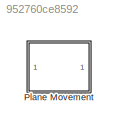
MODEL slx_952760ce8592
KIND library
CONFIG AbsTol = auto
CONFIG EnableMultiTasking = off
CONFIG FixedStep = auto
CONFIG MaxStep = auto
CONFIG MinStep = auto
CONFIG RelTol = 1e-3
CONFIG SampleTimeConstraint = Unconstrained
CONFIG SolverName = VariableStepAuto
CONFIG StartTime = 0.0
CONFIG StopTime = 10.0
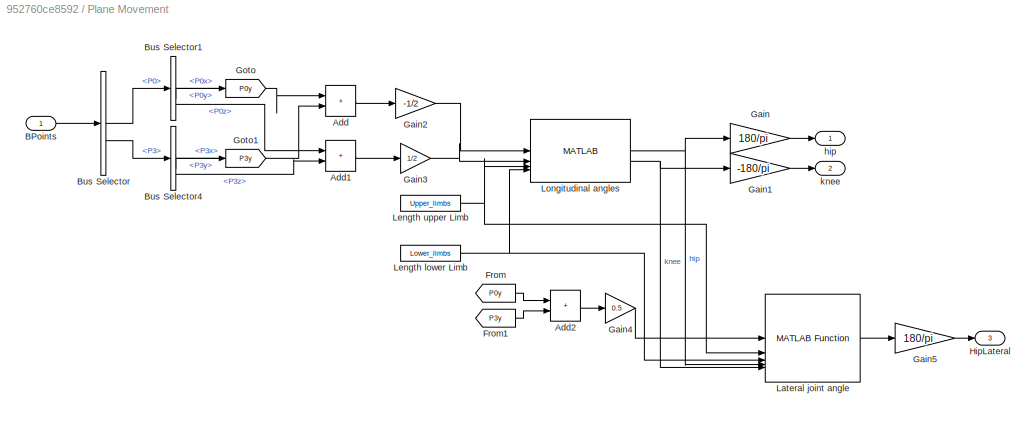
BLOCK [SubSystem] Plane Movement
BLOCK [Sum] Plane Movement/Add
  IconShape = rectangular
BLOCK [Sum] Plane Movement/Add1
  IconShape = rectangular
BLOCK [Sum] Plane Movement/Add2
  IconShape = rectangular
BLOCK [Inport] Plane Movement/BPoints
BLOCK [BusSelector] Plane Movement/Bus Selector
  OutputSignals = P0,P3
BLOCK [BusSelector] Plane Movement/Bus Selector1
  OutputSignals = P0x,P0y,P0z
BLOCK [BusSelector] Plane Movement/Bus Selector4
  OutputSignals = P3x,P3y,P3z
BLOCK [From] Plane Movement/From
  GotoTag = P0y
BLOCK [From] Plane Movement/From1
  GotoTag = P3y
BLOCK [Gain] Plane Movement/Gain
  Gain = 180/pi
BLOCK [Gain] Plane Movement/Gain1
  Gain = -180/pi
BLOCK [Gain] Plane Movement/Gain2
  Gain = -1/2
BLOCK [Gain] Plane Movement/Gain3
  Gain = 1/2
BLOCK [Gain] Plane Movement/Gain4
  Gain = 0.5
BLOCK [Gain] Plane Movement/Gain5
  Gain = 180/pi
BLOCK [Goto] Plane Movement/Goto
  GotoTag = P0y
BLOCK [Goto] Plane Movement/Goto1
  GotoTag = P3y
BLOCK [Outport] Plane Movement/HipLateral
  Port = 3
BLOCK [Reference] Plane Movement/Lateral joint angle  REF=functionAngles/MATLAB Function
  SourceBlock = functionAngles/MATLAB Function
  SourceType = SubSystem
BLOCK [Constant] Plane Movement/Length lower Limb
  Value = Lower_limbs
BLOCK [Constant] Plane Movement/Length upper Limb
  Value = Upper_limbs
BLOCK [Reference] Plane Movement/Longitudinal angles  REF=functionAngles/MATLAB
  SourceBlock = functionAngles/MATLAB
  SourceType = SubSystem
BLOCK [Outport] Plane Movement/hip
BLOCK [Outport] Plane Movement/knee
  Port = 2
LINE Plane Movement/Add1:1 -> Plane Movement/Gain3:1
LINE Plane Movement/Add2:1 -> Plane Movement/Gain4:1
LINE Plane Movement/Add:1 -> Plane Movement/Gain2:1
LINE Plane Movement/BPoints:1 -> Plane Movement/Bus Selector:1
LINE Plane Movement/Bus Selector1:1 -> Plane Movement/Add:1
LINE Plane Movement/Bus Selector1:2 -> Plane Movement/Goto:1
LINE Plane Movement/Bus Selector1:3 -> Plane Movement/Add1:1
LINE Plane Movement/Bus Selector4:1 -> Plane Movement/Add:2
LINE Plane Movement/Bus Selector4:2 -> Plane Movement/Goto1:1
LINE Plane Movement/Bus Selector4:3 -> Plane Movement/Add1:2
LINE Plane Movement/Bus Selector:1 -> Plane Movement/Bus Selector1:1
LINE Plane Movement/Bus Selector:2 -> Plane Movement/Bus Selector4:1
LINE Plane Movement/From1:1 -> Plane Movement/Add2:2
LINE Plane Movement/From:1 -> Plane Movement/Add2:1
LINE Plane Movement/Gain1:1 -> Plane Movement/knee:1
LINE Plane Movement/Gain2:1 -> Plane Movement/Longitudinal angles:1
LINE Plane Movement/Gain3:1 -> Plane Movement/Longitudinal angles:2
LINE Plane Movement/Gain4:1 -> Plane Movement/Lateral joint angle:1
LINE Plane Movement/Gain5:1 -> Plane Movement/HipLateral:1
LINE Plane Movement/Gain:1 -> Plane Movement/hip:1
LINE Plane Movement/Lateral joint angle:1 -> Plane Movement/Gain5:1
NET Plane Movement/Length lower Limb:1 -> Plane Movement/Lateral joint angle:3, Plane Movement/Longitudinal angles:4
NET Plane Movement/Length upper Limb:1 -> Plane Movement/Lateral joint angle:2, Plane Movement/Longitudinal angles:3
NET Plane Movement/Longitudinal angles:1 -> Plane Movement/Gain:1, Plane Movement/Lateral joint angle:4
NET Plane Movement/Longitudinal angles:2 -> Plane Movement/Gain1:1, Plane Movement/Lateral joint angle:5
note: NET lines group one-source signal fan-out (src -> all destinations, sorted); 1:1 wires keep LINE
